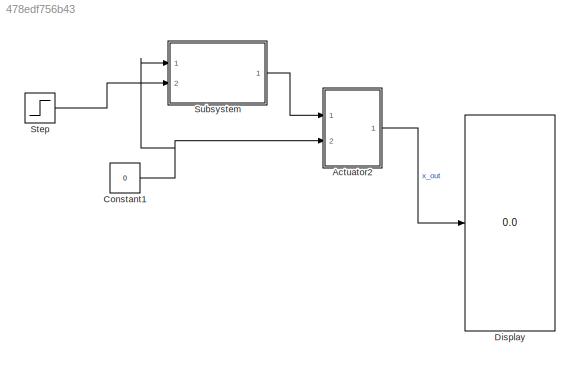
MODEL slx_478edf756b43
KIND model
CONFIG AbsTol = auto
CONFIG EnableMultiTasking = off
CONFIG FixedStep = auto
CONFIG MaxStep = auto
CONFIG MinStep = auto
CONFIG RelTol = 1e-3
CONFIG SampleTimeConstraint = Unconstrained
CONFIG SolverName = VariableStepAuto
CONFIG StartTime = 0.0
CONFIG StopTime = 10.0
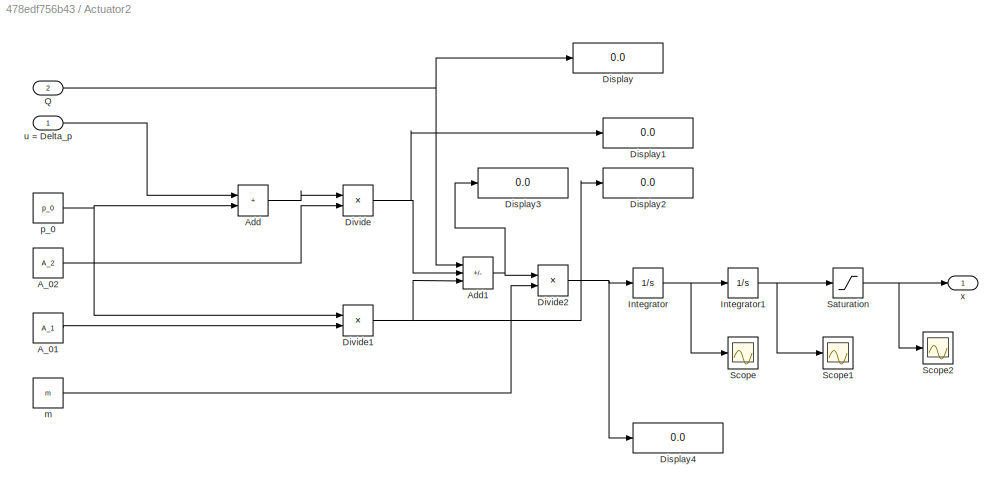
BLOCK [SubSystem] Actuator2
  Ports = [2, 1]
  RequestExecContextInheritance = off
BLOCK [Constant] Actuator2/A_01
  Value = A_1
BLOCK [Constant] Actuator2/A_02
  Value = A_2
BLOCK [Sum] Actuator2/Add
  IconShape = rectangular
  Ports = [2, 1]
BLOCK [Sum] Actuator2/Add1
  IconShape = rectangular
  Inputs = --+
  Ports = [3, 1]
BLOCK [Display] Actuator2/Display
  Decimation = 1
  Ports = [1]
BLOCK [Display] Actuator2/Display1
  Decimation = 1
  Ports = [1]
BLOCK [Display] Actuator2/Display2
  Decimation = 1
  Ports = [1]
BLOCK [Display] Actuator2/Display3
  Decimation = 1
  Ports = [1]
BLOCK [Display] Actuator2/Display4
  Decimation = 1
  Ports = [1]
BLOCK [Product] Actuator2/Divide
  Inputs = **
  Ports = [2, 1]
BLOCK [Product] Actuator2/Divide1
  Inputs = **
  Ports = [2, 1]
BLOCK [Product] Actuator2/Divide2
  Inputs = */
  Ports = [2, 1]
BLOCK [Integrator] Actuator2/Integrator
  Ports = [1, 1]
BLOCK [Integrator] Actuator2/Integrator1
  Ports = [1, 1]
BLOCK [Inport] Actuator2/Q
  Port = 2
BLOCK [Saturate] Actuator2/Saturation
  LowerLimit = x_min
  UpperLimit = x_max
BLOCK [Scope] Actuator2/Scope
  Floating = off
  NumInputPorts = 1
  Ports = [1]
  ScopeSpecificationString = Simulink.scopes.TimeScopeBlockCfg('CurrentConfiguration', extmgr.ConfigurationSet(extmgr.Configuration('Core','General UI',true),extmgr.Configuration('Core','Source UI',true),extmgr.Configuration('Sources','WiredSimulink',true,'DataLoggingVariableName','ScopeData1'),extmgr.Configuration('Visuals','Time Domain',true,'SerializedDisplays',{struct('MinYLimReal','-16204516396013.2793','MaxYLimReal','18...<+1493ch>
BLOCK [Scope] Actuator2/Scope1
  Floating = off
  NumInputPorts = 1
  Ports = [1]
  ScopeSpecificationString = Simulink.scopes.TimeScopeBlockCfg('CurrentConfiguration', extmgr.ConfigurationSet(extmgr.Configuration('Core','General UI',true),extmgr.Configuration('Core','Source UI',true),extmgr.Configuration('Sources','WiredSimulink',true,'DataLoggingVariableName','ScopeData2'),extmgr.Configuration('Visuals','Time Domain',true,'SerializedDisplays',{struct('MinYLimReal','-145840647564119.6875','MaxYLimReal','1...<+1474ch>
BLOCK [Scope] Actuator2/Scope2
  Floating = off
  NumInputPorts = 1
  Ports = [1]
  ScopeSpecificationString = Simulink.scopes.TimeScopeBlockCfg('CurrentConfiguration', extmgr.ConfigurationSet(extmgr.Configuration('Core','General UI',true),extmgr.Configuration('Core','Source UI',true),extmgr.Configuration('Sources','WiredSimulink',true),extmgr.Configuration('Visuals','Time Domain',true,'SerializedDisplays',{struct('MinYLimReal','-0.07875','MaxYLimReal','0.00875','YLabelReal','','MinYLimMag','0.00000','MaxY...<+1362ch>
BLOCK [Constant] Actuator2/m
  Value = m
BLOCK [Constant] Actuator2/p_0
  Value = p_0
BLOCK [Inport] Actuator2/u = Delta_p
BLOCK [Outport] Actuator2/x
BLOCK [Constant] Constant1
  Value = 0
BLOCK [Display] Display
  Decimation = 1
  Ports = [1]
BLOCK [Step] Step
  After = 0.05
  SampleTime = 0
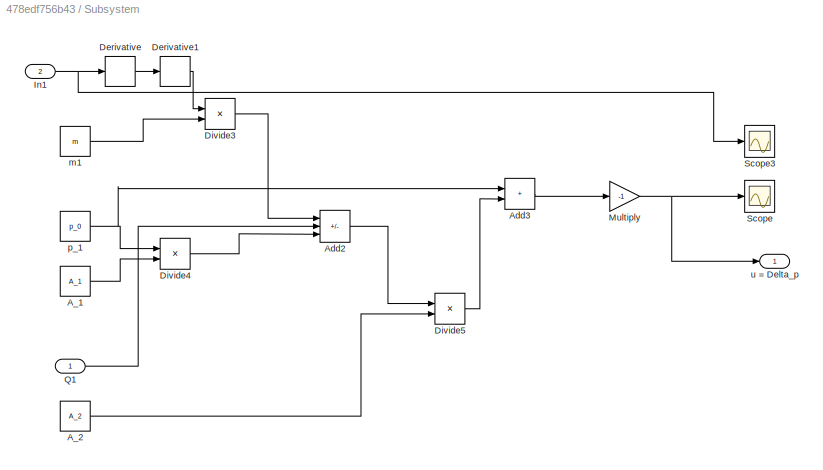
BLOCK [SubSystem] Subsystem
  Ports = [2, 1]
  RequestExecContextInheritance = off
BLOCK [Constant] Subsystem/A_1
  Value = A_1
BLOCK [Constant] Subsystem/A_2
  Value = A_2
BLOCK [Sum] Subsystem/Add2
  IconShape = rectangular
  Inputs = +--
  Ports = [3, 1]
BLOCK [Sum] Subsystem/Add3
  IconShape = rectangular
  Ports = [2, 1]
BLOCK [Derivative] Subsystem/Derivative
BLOCK [Derivative] Subsystem/Derivative1
BLOCK [Product] Subsystem/Divide3
  Inputs = **
  Ports = [2, 1]
BLOCK [Product] Subsystem/Divide4
  Inputs = **
  Ports = [2, 1]
BLOCK [Product] Subsystem/Divide5
  Inputs = */
  Ports = [2, 1]
BLOCK [Inport] Subsystem/In1
  Port = 2
BLOCK [Gain] Subsystem/Multiply
  Gain = -1
BLOCK [Inport] Subsystem/Q1
BLOCK [Scope] Subsystem/Scope
  Floating = off
  NumInputPorts = 1
  Ports = [1]
  ScopeSpecificationString = Simulink.scopes.TimeScopeBlockCfg('CurrentConfiguration', extmgr.ConfigurationSet(extmgr.Configuration('Core','General UI',true),extmgr.Configuration('Core','Source UI',true),extmgr.Configuration('Sources','WiredSimulink',true,'DataLoggingVariableName','ScopeData1'),extmgr.Configuration('Visuals','Time Domain',true),extmgr.Configuration('Tools','Plot Navigation',true),extmgr.Configuration('Tools',...<+40ch>
BLOCK [Scope] Subsystem/Scope3
  Floating = off
  NumInputPorts = 1
  Ports = [1]
  ScopeSpecificationString = Simulink.scopes.TimeScopeBlockCfg('CurrentConfiguration', extmgr.ConfigurationSet(extmgr.Configuration('Core','General UI',true),extmgr.Configuration('Core','Source UI',true),extmgr.Configuration('Sources','WiredSimulink',true,'DataLoggingVariableName','ScopeData2'),extmgr.Configuration('Visuals','Time Domain',true,'SerializedDisplays',{struct('MinYLimReal','-0.00625','MaxYLimReal','0.05625','YLab...<+1396ch>
BLOCK [Constant] Subsystem/m1
  Value = m
BLOCK [Constant] Subsystem/p_1
  Value = p_0
BLOCK [Outport] Subsystem/u = Delta_p
LINE Actuator2/A_01:1 -> Actuator2/Divide1:2
LINE Actuator2/A_02:1 -> Actuator2/Divide:2
NET Actuator2/Add1:1 -> Actuator2/Display3:1, Actuator2/Divide2:1
LINE Actuator2/Add:1 -> Actuator2/Divide:1
NET Actuator2/Divide1:1 -> Actuator2/Add1:3, Actuator2/Display2:1
NET Actuator2/Divide2:1 -> Actuator2/Display4:1, Actuator2/Integrator:1
NET Actuator2/Divide:1 -> Actuator2/Add1:2, Actuator2/Display1:1
NET Actuator2/Integrator1:1 -> Actuator2/Saturation:1, Actuator2/Scope1:1
NET Actuator2/Integrator:1 -> Actuator2/Integrator1:1, Actuator2/Scope:1
NET Actuator2/Q:1 -> Actuator2/Add1:1, Actuator2/Display:1
NET Actuator2/Saturation:1 -> Actuator2/Scope2:1, Actuator2/x:1
LINE Actuator2/m:1 -> Actuator2/Divide2:2
NET Actuator2/p_0:1 -> Actuator2/Add:2, Actuator2/Divide1:1
LINE Actuator2/u = Delta_p:1 -> Actuator2/Add:1
LINE Actuator2:1 -> Display:1
NET Constant1:1 -> Actuator2:2, Subsystem:1
LINE Step:1 -> Subsystem:2
LINE Subsystem/A_1:1 -> Subsystem/Divide4:2
LINE Subsystem/A_2:1 -> Subsystem/Divide5:2
LINE Subsystem/Add2:1 -> Subsystem/Divide5:1
LINE Subsystem/Add3:1 -> Subsystem/Multiply:1
LINE Subsystem/Derivative1:1 -> Subsystem/Divide3:1
LINE Subsystem/Derivative:1 -> Subsystem/Derivative1:1
LINE Subsystem/Divide3:1 -> Subsystem/Add2:1
LINE Subsystem/Divide4:1 -> Subsystem/Add2:3
LINE Subsystem/Divide5:1 -> Subsystem/Add3:2
NET Subsystem/In1:1 -> Subsystem/Derivative:1, Subsystem/Scope3:1
NET Subsystem/Multiply:1 -> Subsystem/Scope:1, Subsystem/u = Delta_p:1
LINE Subsystem/Q1:1 -> Subsystem/Add2:2
LINE Subsystem/m1:1 -> Subsystem/Divide3:2
NET Subsystem/p_1:1 -> Subsystem/Add3:1, Subsystem/Divide4:1
LINE Subsystem:1 -> Actuator2:1
note: NET lines group one-source signal fan-out (src -> all destinations, sorted); 1:1 wires keep LINE
